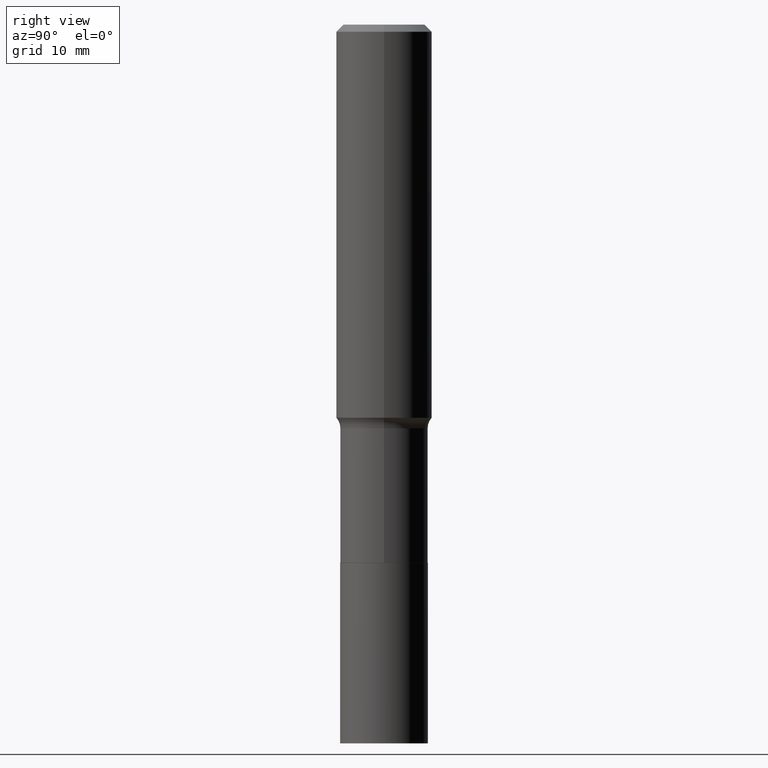
[diagram: clean part render]
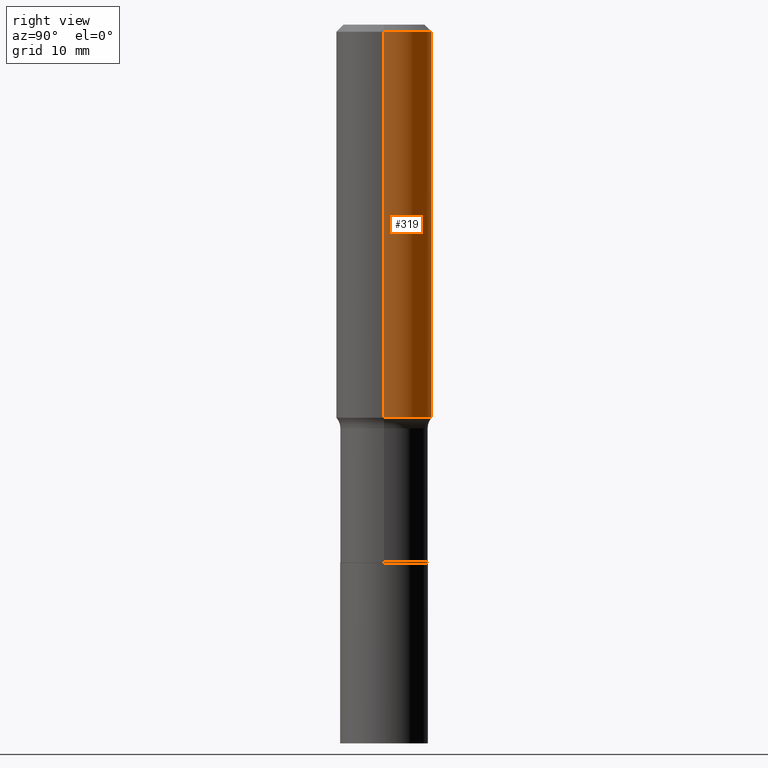
[diagram: same view with one face highlighted and labeled with its STEP entity id]
A machine part, right view. The second image highlights one B-rep face of the part: STEP entity #319.
In plain terms, the highlighted cylindrical surface (partial cylindrical patch) has radius 5.9995 mm, axis along (-0, 0, 1).
Its self-contained STEP definition (entity closure, byte-faithful):
#5 = ORIENTED_EDGE ( 'NONE', *, *, #284, .T. ) ;
#19 = VERTEX_POINT ( 'NONE', #170 ) ;
#21 = AXIS2_PLACEMENT_3D ( 'NONE', #332, #150, #24 ) ;
#24 = DIRECTION ( 'NONE',  ( 1.000000000000000000, -6.982962677686266711E-15, 4.876176775795935793E-29 ) ) ;
#32 = LINE ( 'NONE', #369, #408 ) ;
#55 = ORIENTED_EDGE ( 'NONE', *, *, #248, .F. ) ;
#67 = AXIS2_PLACEMENT_3D ( 'NONE', #227, #186, #148 ) ;
#81 = CARTESIAN_POINT ( 'NONE',  ( -0.2362000000000001043, 1.678301941865357380E-15, -1.161852468318209317E-29 ) ) ;
#85 = VERTEX_POINT ( 'NONE', #262 ) ;
#119 = CIRCLE ( 'NONE', #67, 0.2361999999999999933 ) ;
#124 = DIRECTION ( 'NONE',  ( -2.445468806185136877E-29, 3.491481338843145188E-15, 1.000000000000000000 ) ) ;
#126 = EDGE_CURVE ( 'NONE', #85, #19, #346, .T. ) ;
#148 = DIRECTION ( 'NONE',  ( 1.000000000000000000, -6.982962677686266711E-15, 0.000000000000000000 ) ) ;
#150 = DIRECTION ( 'NONE',  ( -2.445468806185136597E-29, 3.491481338843145583E-15, 1.000000000000000000 ) ) ;
#155 = CIRCLE ( 'NONE', #401, 0.2362000000000002153 ) ;
#156 = VERTEX_POINT ( 'NONE', #167 ) ;
#167 = CARTESIAN_POINT ( 'NONE',  ( 0.2361999999999999933, -1.773078968304709711E-15, -0.03543000000000023908 ) ) ;
#170 = CARTESIAN_POINT ( 'NONE',  ( -0.2361999999999999933, -1.766418864270237619E-15, -0.03543000000000023908 ) ) ;
#186 = DIRECTION ( 'NONE',  ( -2.445468806185136597E-29, 3.491481338843145583E-15, 1.000000000000000000 ) ) ;
#192 = CYLINDRICAL_SURFACE ( 'NONE', #21, 0.2362000000000001043 ) ;
#212 = ORIENTED_EDGE ( 'NONE', *, *, #126, .T. ) ;
#227 = CARTESIAN_POINT ( 'NONE',  ( 8.664295980313996991E-31, -1.237031838352134818E-16, -0.03543000000000023908 ) ) ;
#229 = DIRECTION ( 'NONE',  ( -2.445468806185136597E-29, 3.491481338843145583E-15, 1.000000000000000000 ) ) ;
#236 = VERTEX_POINT ( 'NONE', #238 ) ;
#238 = CARTESIAN_POINT ( 'NONE',  ( 0.2362000000000002431, -8.415114212905475310E-15, -1.937784502287419386 ) ) ;
#248 = EDGE_CURVE ( 'NONE', #236, #156, #32, .T. ) ;
#262 = CARTESIAN_POINT ( 'NONE',  ( -0.2362000000000002431, -5.087436486570619235E-15, -1.937784502287419386 ) ) ;
#268 = VECTOR ( 'NONE', #124, 39.37007874015748143 ) ;
#278 = EDGE_LOOP ( 'NONE', ( #5, #212, #439, #55 ) ) ;
#284 = EDGE_CURVE ( 'NONE', #236, #85, #155, .T. ) ;
#319 = ADVANCED_FACE ( 'NONE', ( #424 ), #192, .T. ) ;
#332 = CARTESIAN_POINT ( 'NONE',  ( 0.000000000000000000, 0.000000000000000000, 0.000000000000000000 ) ) ;
#346 = LINE ( 'NONE', #81, #268 ) ;
#365 = DIRECTION ( 'NONE',  ( 1.000000000000000000, -6.982962677686266711E-15, 0.000000000000000000 ) ) ;
#369 = CARTESIAN_POINT ( 'NONE',  ( 0.2362000000000001043, -1.649375784469496920E-15, 1.151752954443000508E-29 ) ) ;
#378 = EDGE_CURVE ( 'NONE', #156, #19, #119, .T. ) ;
#396 = DIRECTION ( 'NONE',  ( -2.445468806185136877E-29, 3.491481338843145188E-15, 1.000000000000000000 ) ) ;
#401 = AXIS2_PLACEMENT_3D ( 'NONE', #467, #229, #365 ) ;
#408 = VECTOR ( 'NONE', #396, 39.37007874015748143 ) ;
#424 = FACE_OUTER_BOUND ( 'NONE', #278, .T. ) ;
#439 = ORIENTED_EDGE ( 'NONE', *, *, #378, .F. ) ;
#467 = CARTESIAN_POINT ( 'NONE',  ( 4.738791553452874442E-29, -6.765738428435977207E-15, -1.937784502287419386 ) ) ;